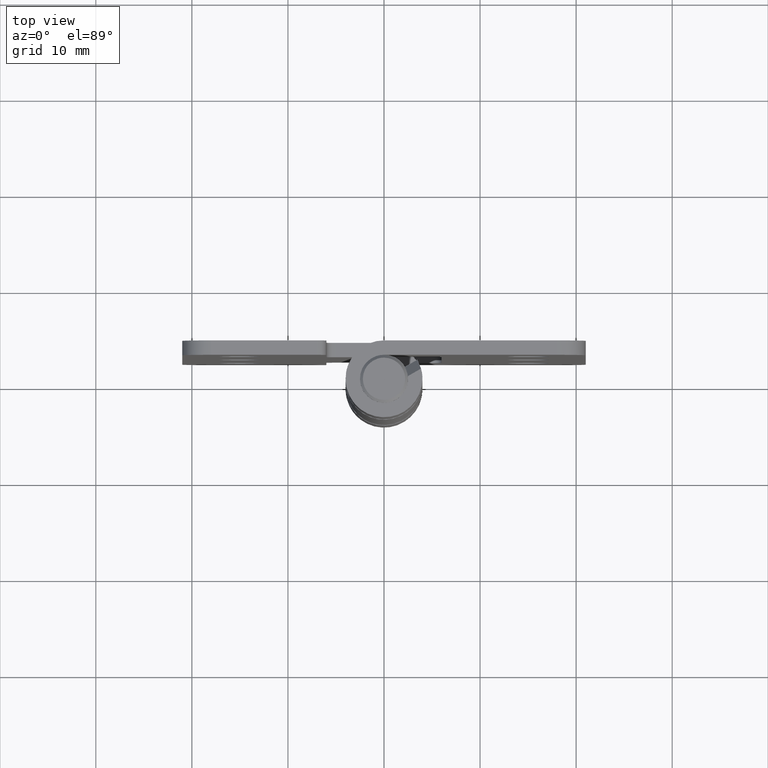
[diagram: clean part render]
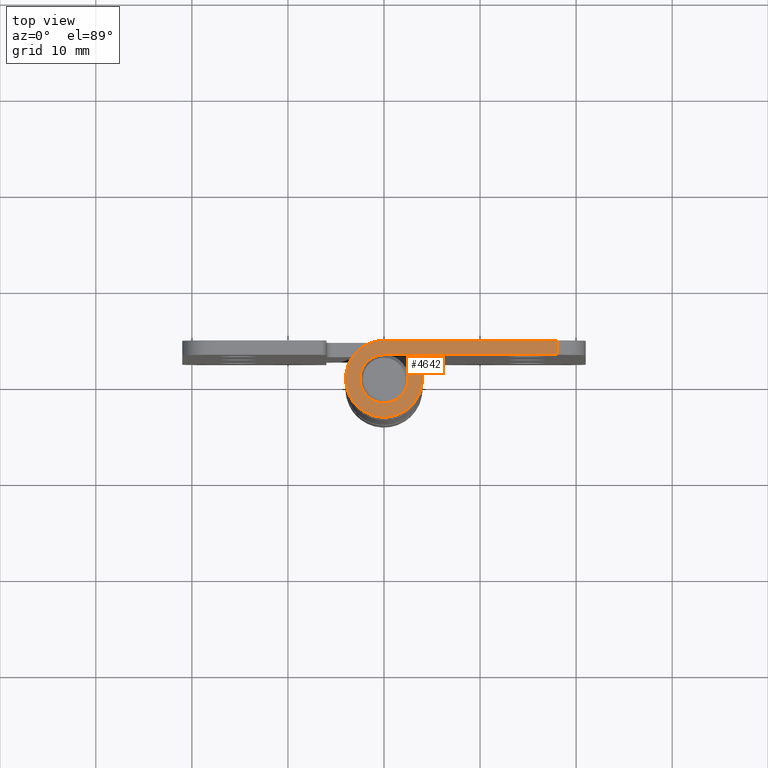
[diagram: same view with one face highlighted and labeled with its STEP entity id]
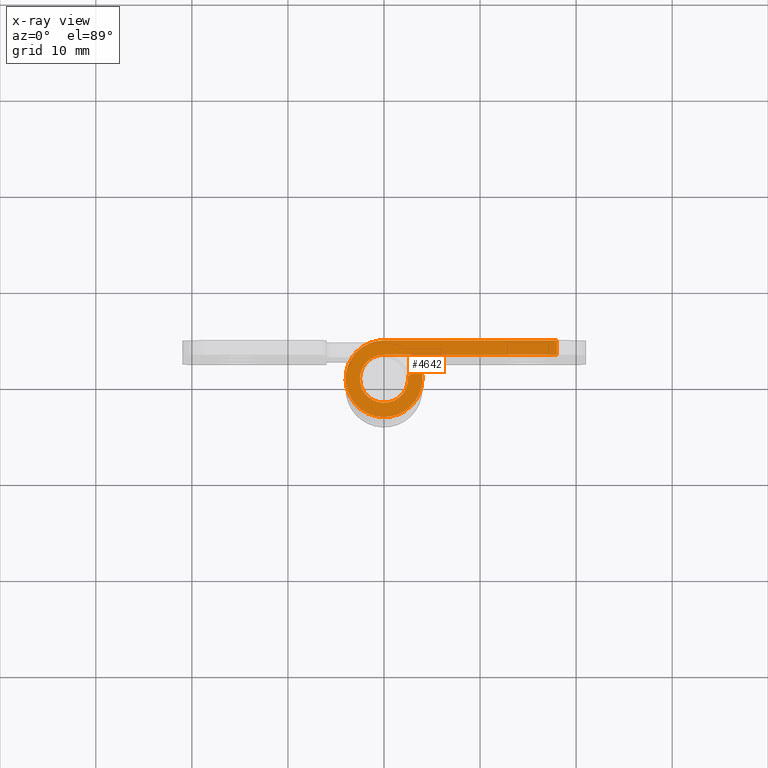
[diagram: x-ray of the same camera — body ghosted, the highlighted face saturated]
A machine part, top view. The second image highlights one B-rep face of the part: STEP entity #4642.
The next image is the same camera in x-ray: the body ghosted, the highlighted face saturated — about 0% of this face is hidden behind the body in this view.
In plain terms, the highlighted face is a freeform B-spline surface patch.
Its self-contained STEP definition (entity closure, byte-faithful):
#3291=CARTESIAN_POINT('',(3.854101966250330,1.070466269319572,62.0));
#3292=VERTEX_POINT('',#3291);
#3307=CARTESIAN_POINT('',(2.484313483298675,0.279618519954469,62.0));
#3308=VERTEX_POINT('',#3307);
#3316=CARTESIAN_POINT('',(3.854101966250330,1.070466269319572,62.0));
#3317=CARTESIAN_POINT('',(2.484313483298675,0.279618519954469,62.0));
#3318=QUASI_UNIFORM_CURVE('',1,(#3316,#3317),.UNSPECIFIED.,.F.,.U.);
#3319=EDGE_CURVE('',#3292,#3308,#3318,.T.);
#3392=CARTESIAN_POINT('',(18.0,2.500000000000490,62.0));
#3393=VERTEX_POINT('',#3392);
#3409=CARTESIAN_POINT('',(18.0,4.000000000000686,62.0));
#3410=VERTEX_POINT('',#3409);
#3425=CARTESIAN_POINT('',(18.0,2.500000000000490,62.0));
#3426=CARTESIAN_POINT('',(18.0,4.000000000000686,62.0));
#3427=QUASI_UNIFORM_CURVE('',1,(#3425,#3426),.UNSPECIFIED.,.F.,.U.);
#3428=EDGE_CURVE('',#3393,#3410,#3427,.T.);
#4543=CARTESIAN_POINT('',(-5.098761264334877,4.399580490828124,62.0));
#4544=CARTESIAN_POINT('',(19.098893949187360,4.399580490828124,62.0));
#4545=CARTESIAN_POINT('',(-5.098761264334877,-4.399190441703800,62.0));
#4546=CARTESIAN_POINT('',(19.098893949187360,-4.399190441703800,62.0));
#4547=B_SPLINE_SURFACE_WITH_KNOTS('',1,1,((#4543,#4545),(#4544,#4546)),.UNSPECIFIED.,.F.,.F.,.U.,(2,2),(2,2),(0.0,24.197655213522239),(0.0,8.798770932531923),.UNSPECIFIED.);
#4548=CARTESIAN_POINT('',(4.936607E-013,4.000000000000370,62.0));
#4549=VERTEX_POINT('',#4548);
#4550=CARTESIAN_POINT('',(-2.420551077626092,-3.184483079026694,62.0));
#4551=VERTEX_POINT('',#4550);
#4552=CARTESIAN_POINT('',(4.936607E-013,4.000000000000370,62.0));
#4553=CARTESIAN_POINT('',(-0.376349465903034,4.000148642646726,62.000000000000192));
#4554=CARTESIAN_POINT('',(-1.051097122675481,3.904039377282240,61.999999999999730));
#4555=CARTESIAN_POINT('',(-1.870983036021710,3.562978399874444,62.000000000000192));
#4556=CARTESIAN_POINT('',(-2.555152608813394,3.110815219353242,61.999999999999829));
#4557=CARTESIAN_POINT('',(-3.169115100253145,2.505238772174165,62.000000000000107));
#4558=CARTESIAN_POINT('',(-3.646781863879996,1.723969083202215,62.000000000000213));
#4559=CARTESIAN_POINT('',(-3.896501027544300,0.982569784239166,62.000000000000107));
#4560=CARTESIAN_POINT('',(-4.014285020932722,0.250555443932615,61.999999999999872));
#4561=CARTESIAN_POINT('',(-3.998754776009231,-0.506694709304179,62.000000000000547));
#4562=CARTESIAN_POINT('',(-3.810633447440004,-1.293335662748979,62.000000000000178));
#4563=CARTESIAN_POINT('',(-3.478002628195500,-2.029371771364215,61.999999999999673));
#4564=CARTESIAN_POINT('',(-3.020205396342953,-2.665237407996027,62.000000000000227));
#4565=CARTESIAN_POINT('',(-2.616851707307737,-3.035292174739457,61.999999999999993));
#4566=CARTESIAN_POINT('',(-2.420551077626092,-3.184483079026694,62.0));
#4567=B_SPLINE_CURVE_WITH_KNOTS('',3,(#4552,#4553,#4554,#4555,#4556,#4557,#4558,#4559,#4560,#4561,#4562,#4563,#4564,#4565,#4566),.UNSPECIFIED.,.F.,.U.,(4,1,1,1,1,1,1,1,1,1,1,1,4),(0.000000159103585,1.129013836514737,2.024474923315585,2.647394436346899,3.581785896946247,4.594019665649761,5.372649188406495,5.917686221487802,6.813137760748835,7.630722226993091,8.331514685059183,9.226966837780564,9.966654325054217),.UNSPECIFIED.);
#4568=EDGE_CURVE('',#4549,#4551,#4567,.T.);
#4569=ORIENTED_EDGE('',*,*,#4568,.T.);
#4570=CARTESIAN_POINT('',(-2.420551077626092,-3.184483079026694,62.0));
#4571=CARTESIAN_POINT('',(-2.265589275817154,-3.302272468294007,61.999999999999972));
#4572=CARTESIAN_POINT('',(-1.851188757710094,-3.572012740293411,61.999999999999957));
#4573=CARTESIAN_POINT('',(-1.175385985389328,-3.851425766845114,62.000000000000078));
#4574=CARTESIAN_POINT('',(-0.484875776565555,-3.985931471865206,61.999999999999957));
#4575=CARTESIAN_POINT('',(0.268689358715487,-4.017416590376904,62.000000000000099));
#4576=CARTESIAN_POINT('',(1.018999182420311,-3.901667822579691,61.999999999999950));
#4577=CARTESIAN_POINT('',(1.844248238592006,-3.579595909574382,62.000000000000341));
#4578=CARTESIAN_POINT('',(2.459304280264337,-3.184034965802966,61.999999999999318));
#4579=CARTESIAN_POINT('',(2.951342119430347,-2.719587391416822,62.000000000000043));
#4580=CARTESIAN_POINT('',(3.332508518342308,-2.241603314605546,61.999999999999581));
#4581=CARTESIAN_POINT('',(3.719301677366051,-1.562333796064461,62.000000000002608));
#4582=CARTESIAN_POINT('',(3.942912170672274,-0.822628173746844,61.999999999998593));
#4583=CARTESIAN_POINT('',(4.030806887822794,0.109514325706004,62.000000000000512));
#4584=CARTESIAN_POINT('',(3.961971752045892,0.682870522675592,62.000000000000348));
#4585=CARTESIAN_POINT('',(3.854101966250330,1.070466269319572,62.0));
#4586=B_SPLINE_CURVE_WITH_KNOTS('',3,(#4570,#4571,#4572,#4573,#4574,#4575,#4576,#4577,#4578,#4579,#4580,#4581,#4582,#4583,#4584,#4585),.UNSPECIFIED.,.F.,.U.,(4,1,1,1,1,1,1,1,1,1,1,1,1,4),(0.000000159099127,0.583947650511696,1.479408886730170,2.180202107639649,2.686329491399703,3.737501744226593,4.438309630687122,5.333681427980642,5.917686239366724,6.462746447029180,7.163530877683119,8.253650775019812,8.759766533830868,9.966654355170132),.UNSPECIFIED.);
#4587=EDGE_CURVE('',#4551,#3292,#4586,.T.);
#4588=ORIENTED_EDGE('',*,*,#4587,.T.);
#4589=ORIENTED_EDGE('',*,*,#3319,.T.);
#4590=CARTESIAN_POINT('',(-1.665976249856042,-1.864007278664662,61.999999999999993));
#4591=VERTEX_POINT('',#4590);
#4592=CARTESIAN_POINT('',(-1.665976249856042,-1.864007278664662,61.999999999999993));
#4593=CARTESIAN_POINT('',(-1.490382870743166,-2.021055455172804,62.000000000000021));
#4594=CARTESIAN_POINT('',(-1.186776900918838,-2.223309705374322,62.000000000000021));
#4595=CARTESIAN_POINT('',(-0.717115561497199,-2.406129328737690,61.999999999999943));
#4596=CARTESIAN_POINT('',(-0.285601742838488,-2.498627596359571,62.000000000000121));
#4597=CARTESIAN_POINT('',(0.187961397459197,-2.509360494104719,61.999999999999751));
#4598=CARTESIAN_POINT('',(0.653952133346000,-2.426838433928866,62.000000000000377));
#4599=CARTESIAN_POINT('',(1.053064955830420,-2.279210745390682,61.999999999999247));
#4600=CARTESIAN_POINT('',(1.436970491031636,-2.062238626388507,62.000000000000512));
#4601=CARTESIAN_POINT('',(1.764805455668455,-1.789743038754885,61.999999999999247));
#4602=CARTESIAN_POINT('',(2.038178124330983,-1.464010026147522,62.000000000000931));
#4603=CARTESIAN_POINT('',(2.284197105108348,-1.060619382256000,61.999999999999332));
#4604=CARTESIAN_POINT('',(2.490373916920279,-0.478196258620558,62.000000000000171));
#4605=CARTESIAN_POINT('',(2.514321070421524,0.014315369143261,62.000000000000092));
#4606=CARTESIAN_POINT('',(2.484313483298675,0.279618519954469,62.0));
#4607=B_SPLINE_CURVE_WITH_KNOTS('',3,(#4592,#4593,#4594,#4595,#4596,#4597,#4598,#4599,#4600,#4601,#4602,#4603,#4604,#4605,#4606),.UNSPECIFIED.,.F.,.U.,(4,1,1,1,1,1,1,1,1,1,1,1,4),(0.000000096410663,0.706713524109642,1.083627903237821,1.507670652097555,2.025932882310059,2.497091516584066,2.921124950769298,3.297992391394852,3.816274967703752,4.193203435251476,4.570123699179057,5.229741892234316,6.030677873428547),.UNSPECIFIED.);
#4608=EDGE_CURVE('',#4591,#3308,#4607,.T.);
#4609=ORIENTED_EDGE('',*,*,#4608,.F.);
#4610=CARTESIAN_POINT('',(1.603011E-013,2.500000000000000,62.0));
#4611=VERTEX_POINT('',#4610);
#4612=CARTESIAN_POINT('',(1.603011E-013,2.500000000000000,62.0));
#4613=CARTESIAN_POINT('',(-0.188449908651684,2.500037741898449,62.000000000000171));
#4614=CARTESIAN_POINT('',(-0.518230052887689,2.462524390564644,61.999999999999872));
#4615=CARTESIAN_POINT('',(-0.998404513141717,2.308215473789296,62.000000000000078));
#4616=CARTESIAN_POINT('',(-1.455853067655379,2.058716849324545,61.999999999999623));
#4617=CARTESIAN_POINT('',(-1.834635908872994,1.722722564282903,62.000000000000917));
#4618=CARTESIAN_POINT('',(-2.157576269052424,1.295573069768417,61.999999999999503));
#4619=CARTESIAN_POINT('',(-2.363824647200095,0.868066685435447,61.999999999999467));
#4620=CARTESIAN_POINT('',(-2.492309466873940,0.347813808969341,62.000000000000590));
#4621=CARTESIAN_POINT('',(-2.518337715306060,-0.236427867574783,61.999999999999488));
#4622=CARTESIAN_POINT('',(-2.379956565403437,-0.856529098191456,62.000000000000213));
#4623=CARTESIAN_POINT('',(-2.078682964268395,-1.430281310059785,61.999999999999893));
#4624=CARTESIAN_POINT('',(-1.818228819929574,-1.727996018137101,62.000000000000028));
#4625=CARTESIAN_POINT('',(-1.665976249856042,-1.864007278664662,61.999999999999993));
#4626=B_SPLINE_CURVE_WITH_KNOTS('',3,(#4612,#4613,#4614,#4615,#4616,#4617,#4618,#4619,#4620,#4621,#4622,#4623,#4624,#4625),.UNSPECIFIED.,.F.,.U.,(4,1,1,1,1,1,1,1,1,1,1,4),(0.000000096411142,0.565350188676069,0.989406063481431,1.507670649073138,2.120174105401772,2.497091511574384,3.109548550301565,3.533594078536817,4.098964374209054,4.852813414951200,5.418209669400327,6.030677861329430),.UNSPECIFIED.);
#4627=EDGE_CURVE('',#4611,#4591,#4626,.T.);
#4628=ORIENTED_EDGE('',*,*,#4627,.F.);
#4629=CARTESIAN_POINT('',(1.603011E-013,2.500000000000000,62.0));
#4630=CARTESIAN_POINT('',(18.0,2.500000000000490,62.0));
#4631=QUASI_UNIFORM_CURVE('',1,(#4629,#4630),.UNSPECIFIED.,.F.,.U.);
#4632=EDGE_CURVE('',#4611,#3393,#4631,.T.);
#4633=ORIENTED_EDGE('',*,*,#4632,.T.);
#4634=ORIENTED_EDGE('',*,*,#3428,.T.);
#4635=CARTESIAN_POINT('',(18.0,4.000000000000686,62.0));
#4636=CARTESIAN_POINT('',(4.936607E-013,4.000000000000370,62.0));
#4637=QUASI_UNIFORM_CURVE('',1,(#4635,#4636),.UNSPECIFIED.,.F.,.U.);
#4638=EDGE_CURVE('',#3410,#4549,#4637,.T.);
#4639=ORIENTED_EDGE('',*,*,#4638,.T.);
#4640=EDGE_LOOP('',(#4569,#4588,#4589,#4609,#4628,#4633,#4634,#4639));
#4641=FACE_OUTER_BOUND('',#4640,.T.);
#4642=ADVANCED_FACE('',(#4641),#4547,.F.);